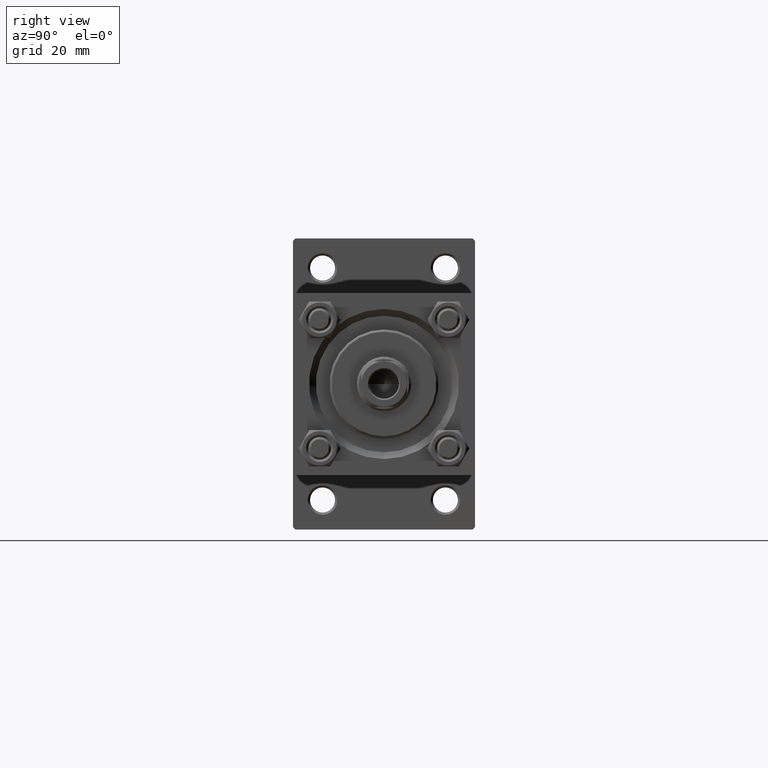
[diagram: clean part render]
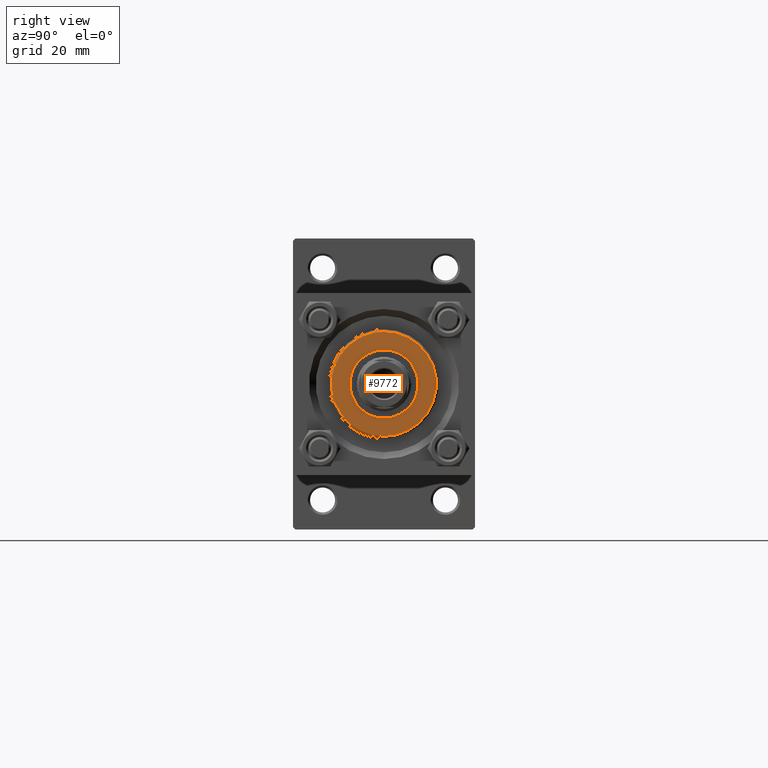
[diagram: same view with one face highlighted and labeled with its STEP entity id]
A machine part, right view. The second image highlights one B-rep face of the part: STEP entity #9772.
In plain terms, the highlighted planar face has unit normal (1, 0, 0).
Its self-contained STEP definition (entity closure, byte-faithful):
#2402 = CARTESIAN_POINT ( 'NONE',  ( 0.000000000000000000, 0.000000000000000000, 35.70000000000000284 ) ) ;
#2823 = ORIENTED_EDGE ( 'NONE', *, *, #4453, .F. ) ;
#3731 = AXIS2_PLACEMENT_3D ( 'NONE', #15154, #19669, #15399 ) ;
#4453 = EDGE_CURVE ( 'NONE', #16138, #4538, #24706, .T. ) ;
#4538 = VERTEX_POINT ( 'NONE', #33490 ) ;
#5541 = AXIS2_PLACEMENT_3D ( 'NONE', #41428, #6874, #30079 ) ;
#6874 = DIRECTION ( 'NONE',  ( 0.000000000000000000, 0.000000000000000000, 1.000000000000000000 ) ) ;
#7130 = FACE_BOUND ( 'NONE', #37802, .T. ) ;
#9772 = ADVANCED_FACE ( 'NONE', ( #7130, #33868 ), #41180, .T. ) ;
#10758 = CARTESIAN_POINT ( 'NONE',  ( 0.000000000000000000, 0.000000000000000000, 35.70000000000000284 ) ) ;
#12239 = ORIENTED_EDGE ( 'NONE', *, *, #27985, .T. ) ;
#15154 = CARTESIAN_POINT ( 'NONE',  ( 0.000000000000000000, 0.000000000000000000, 35.70000000000000284 ) ) ;
#15399 = DIRECTION ( 'NONE',  ( 1.000000000000000000, 0.000000000000000000, 0.000000000000000000 ) ) ;
#15780 = CIRCLE ( 'NONE', #28677, 7.500000000000000888 ) ;
#16138 = VERTEX_POINT ( 'NONE', #34860 ) ;
#19007 = CIRCLE ( 'NONE', #3731, 11.49999999999999645 ) ;
#19669 = DIRECTION ( 'NONE',  ( 0.000000000000000000, 0.000000000000000000, 1.000000000000000000 ) ) ;
#20174 = CARTESIAN_POINT ( 'NONE',  ( -11.49999999999999645, 0.000000000000000000, 35.70000000000000284 ) ) ;
#22102 = EDGE_LOOP ( 'NONE', ( #12239, #28698 ) ) ;
#24706 = CIRCLE ( 'NONE', #39162, 7.500000000000000888 ) ;
#25676 = CARTESIAN_POINT ( 'NONE',  ( 0.000000000000000000, 0.000000000000000000, 35.70000000000000284 ) ) ;
#26239 = VERTEX_POINT ( 'NONE', #20174 ) ;
#27631 = EDGE_CURVE ( 'NONE', #4538, #16138, #15780, .T. ) ;
#27985 = EDGE_CURVE ( 'NONE', #26239, #28690, #19007, .T. ) ;
#28677 = AXIS2_PLACEMENT_3D ( 'NONE', #2402, #28918, #47845 ) ;
#28690 = VERTEX_POINT ( 'NONE', #29598 ) ;
#28698 = ORIENTED_EDGE ( 'NONE', *, *, #29255, .T. ) ;
#28918 = DIRECTION ( 'NONE',  ( 0.000000000000000000, 0.000000000000000000, 1.000000000000000000 ) ) ;
#29255 = EDGE_CURVE ( 'NONE', #28690, #26239, #32780, .T. ) ;
#29598 = CARTESIAN_POINT ( 'NONE',  ( 11.49999999999999645, 1.438959988998139963E-15, 35.70000000000000284 ) ) ;
#29915 = DIRECTION ( 'NONE',  ( 0.000000000000000000, 0.000000000000000000, 1.000000000000000000 ) ) ;
#30079 = DIRECTION ( 'NONE',  ( 1.000000000000000000, 0.000000000000000000, -0.000000000000000000 ) ) ;
#32252 = DIRECTION ( 'NONE',  ( 0.000000000000000000, 0.000000000000000000, 1.000000000000000000 ) ) ;
#32780 = CIRCLE ( 'NONE', #44829, 11.49999999999999645 ) ;
#33490 = CARTESIAN_POINT ( 'NONE',  ( -7.500000000000000888, 9.184850993605149917E-16, 35.70000000000000284 ) ) ;
#33868 = FACE_OUTER_BOUND ( 'NONE', #22102, .T. ) ;
#34860 = CARTESIAN_POINT ( 'NONE',  ( 7.500000000000000888, 0.000000000000000000, 35.70000000000000284 ) ) ;
#37802 = EDGE_LOOP ( 'NONE', ( #2823, #38435 ) ) ;
#38435 = ORIENTED_EDGE ( 'NONE', *, *, #27631, .F. ) ;
#39162 = AXIS2_PLACEMENT_3D ( 'NONE', #25676, #32252, #41064 ) ;
#41064 = DIRECTION ( 'NONE',  ( 1.000000000000000000, 0.000000000000000000, 0.000000000000000000 ) ) ;
#41180 = PLANE ( 'NONE',  #5541 ) ;
#41428 = CARTESIAN_POINT ( 'NONE',  ( 0.000000000000000000, 0.000000000000000000, 35.70000000000000284 ) ) ;
#44829 = AXIS2_PLACEMENT_3D ( 'NONE', #10758, #29915, #48110 ) ;
#47845 = DIRECTION ( 'NONE',  ( 1.000000000000000000, 0.000000000000000000, 0.000000000000000000 ) ) ;
#48110 = DIRECTION ( 'NONE',  ( 1.000000000000000000, 0.000000000000000000, 0.000000000000000000 ) ) ;